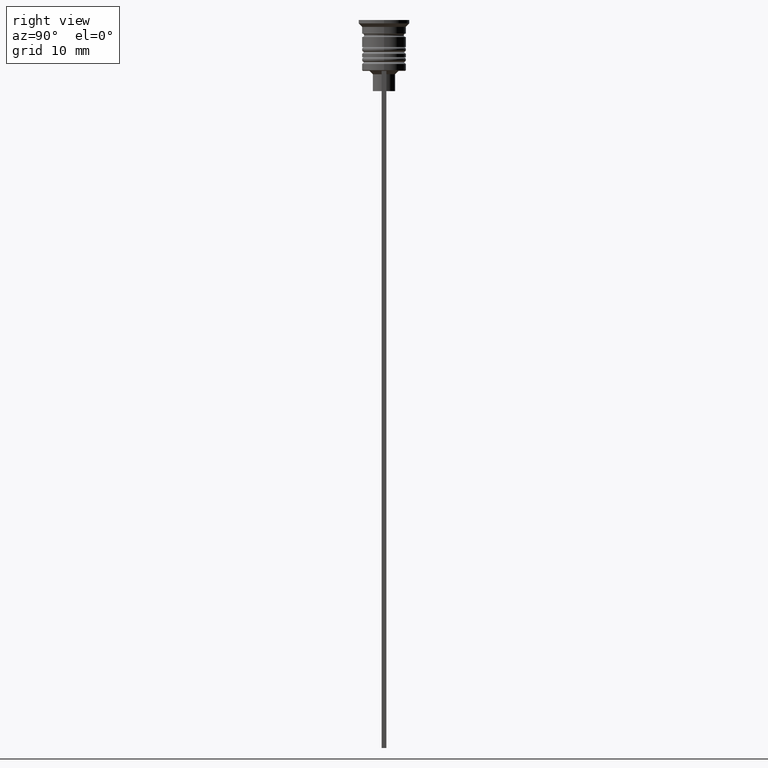
[diagram: clean part render]
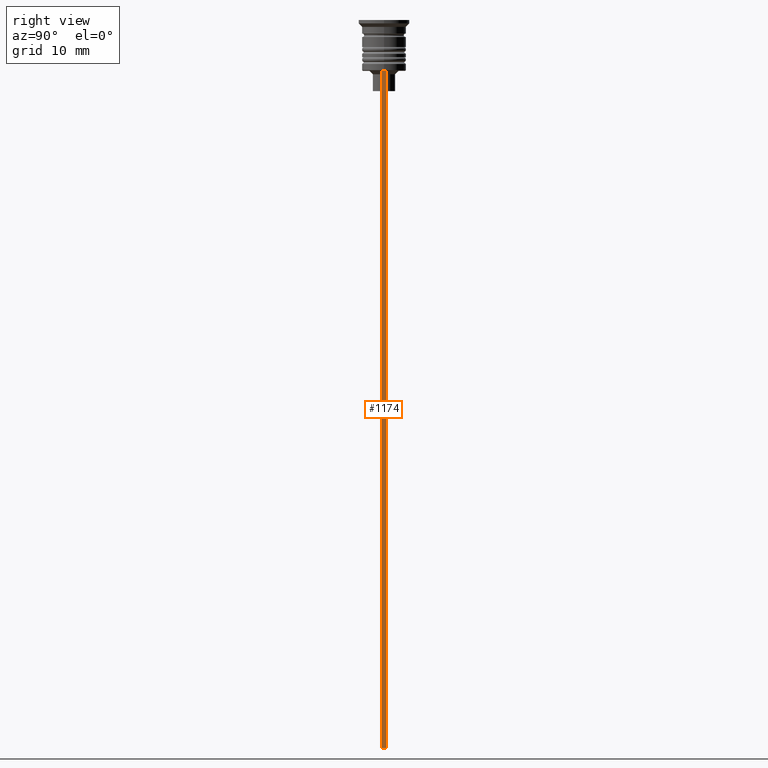
[diagram: same view with one face highlighted and labeled with its STEP entity id]
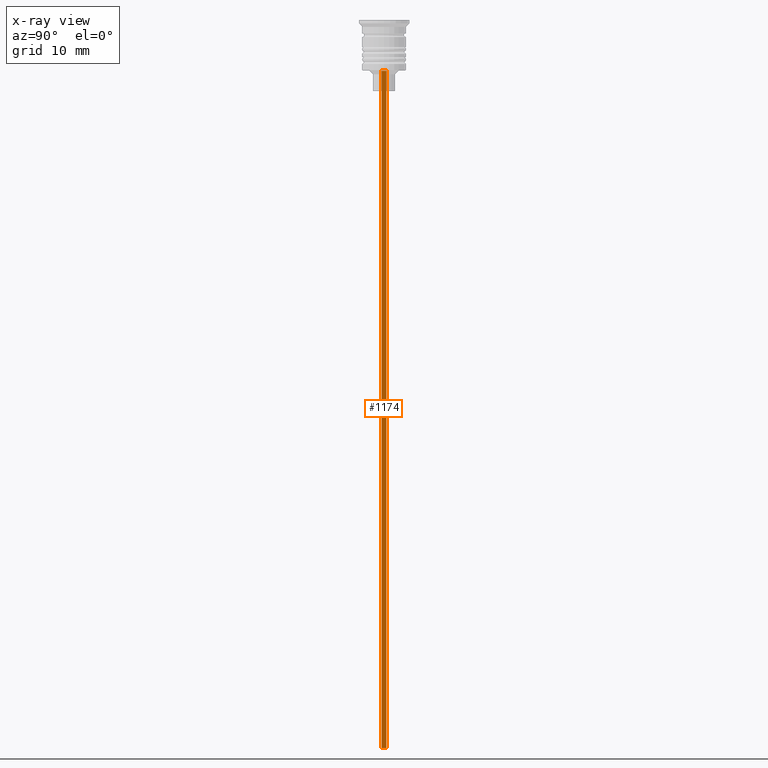
[diagram: x-ray of the same camera — body ghosted, the highlighted face saturated]
A machine part, right view. The second image highlights one B-rep face of the part: STEP entity #1174.
The next image is the same camera in x-ray: the body ghosted, the highlighted face saturated — about 0% of this face is hidden behind the body in this view.
In plain terms, the highlighted planar face has unit normal (-1, 0, 0).
Its self-contained STEP definition (entity closure, byte-faithful):
#25 = DIRECTION ( 'NONE',  ( 0.000000000000000000, -1.000000000000000000, 0.000000000000000000 ) ) ;
#51 = CARTESIAN_POINT ( 'NONE',  ( 2.999999999999995559, 0.3500000000000000333, -107.5000000000000000 ) ) ;
#85 = VERTEX_POINT ( 'NONE', #1968 ) ;
#112 = VERTEX_POINT ( 'NONE', #1270 ) ;
#234 = CARTESIAN_POINT ( 'NONE',  ( 2.999999999999995559, -0.3500000000000000333, -7.500000000000000000 ) ) ;
#238 = DIRECTION ( 'NONE',  ( -1.000000000000000000, 0.000000000000000000, 0.000000000000000000 ) ) ;
#348 = EDGE_CURVE ( 'NONE', #112, #1993, #648, .T. ) ;
#418 = VECTOR ( 'NONE', #25, 1000.000000000000000 ) ;
#486 = VECTOR ( 'NONE', #640, 1000.000000000000000 ) ;
#549 = EDGE_LOOP ( 'NONE', ( #971, #630, #1200, #1413 ) ) ;
#593 = AXIS2_PLACEMENT_3D ( 'NONE', #1855, #238, #819 ) ;
#630 = ORIENTED_EDGE ( 'NONE', *, *, #710, .T. ) ;
#631 = EDGE_CURVE ( 'NONE', #1950, #1993, #2141, .T. ) ;
#637 = CARTESIAN_POINT ( 'NONE',  ( 2.999999999999995559, -0.3500000000000000333, -1.459304675784417915 ) ) ;
#640 = DIRECTION ( 'NONE',  ( 0.000000000000000000, 0.000000000000000000, -1.000000000000000000 ) ) ;
#648 = LINE ( 'NONE', #1990, #486 ) ;
#710 = EDGE_CURVE ( 'NONE', #112, #85, #730, .T. ) ;
#730 = LINE ( 'NONE', #234, #418 ) ;
#819 = DIRECTION ( 'NONE',  ( 0.000000000000000000, 0.000000000000000000, 1.000000000000000000 ) ) ;
#822 = DIRECTION ( 'NONE',  ( 0.000000000000000000, 0.000000000000000000, -1.000000000000000000 ) ) ;
#898 = CARTESIAN_POINT ( 'NONE',  ( 2.999999999999995559, -0.3500000000000000333, -107.5000000000000000 ) ) ;
#971 = ORIENTED_EDGE ( 'NONE', *, *, #348, .F. ) ;
#1174 = ADVANCED_FACE ( 'NONE', ( #1896 ), #1577, .F. ) ;
#1200 = ORIENTED_EDGE ( 'NONE', *, *, #1859, .T. ) ;
#1270 = CARTESIAN_POINT ( 'NONE',  ( 2.999999999999995559, 0.3500000000000000333, -7.500000000000000000 ) ) ;
#1413 = ORIENTED_EDGE ( 'NONE', *, *, #631, .T. ) ;
#1476 = LINE ( 'NONE', #637, #2014 ) ;
#1577 = PLANE ( 'NONE',  #593 ) ;
#1588 = DIRECTION ( 'NONE',  ( 0.000000000000000000, 1.000000000000000000, 0.000000000000000000 ) ) ;
#1735 = CARTESIAN_POINT ( 'NONE',  ( 2.999999999999995559, -0.3500000000000000333, -107.5000000000000000 ) ) ;
#1755 = VECTOR ( 'NONE', #1588, 1000.000000000000000 ) ;
#1855 = CARTESIAN_POINT ( 'NONE',  ( 2.999999999999995559, -0.3500000000000000333, -1.459304675784417915 ) ) ;
#1859 = EDGE_CURVE ( 'NONE', #85, #1950, #1476, .T. ) ;
#1896 = FACE_OUTER_BOUND ( 'NONE', #549, .T. ) ;
#1950 = VERTEX_POINT ( 'NONE', #1735 ) ;
#1968 = CARTESIAN_POINT ( 'NONE',  ( 2.999999999999995559, -0.3500000000000000333, -7.500000000000000000 ) ) ;
#1990 = CARTESIAN_POINT ( 'NONE',  ( 2.999999999999995559, 0.3500000000000000333, -1.459304675784417915 ) ) ;
#1993 = VERTEX_POINT ( 'NONE', #51 ) ;
#2014 = VECTOR ( 'NONE', #822, 1000.000000000000000 ) ;
#2141 = LINE ( 'NONE', #898, #1755 ) ;